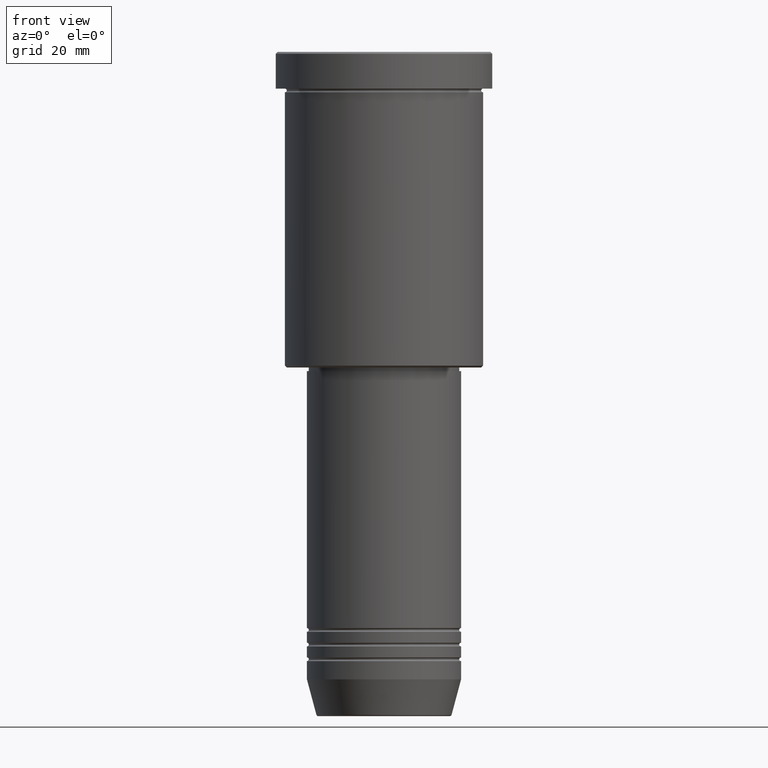
[diagram: clean part render]
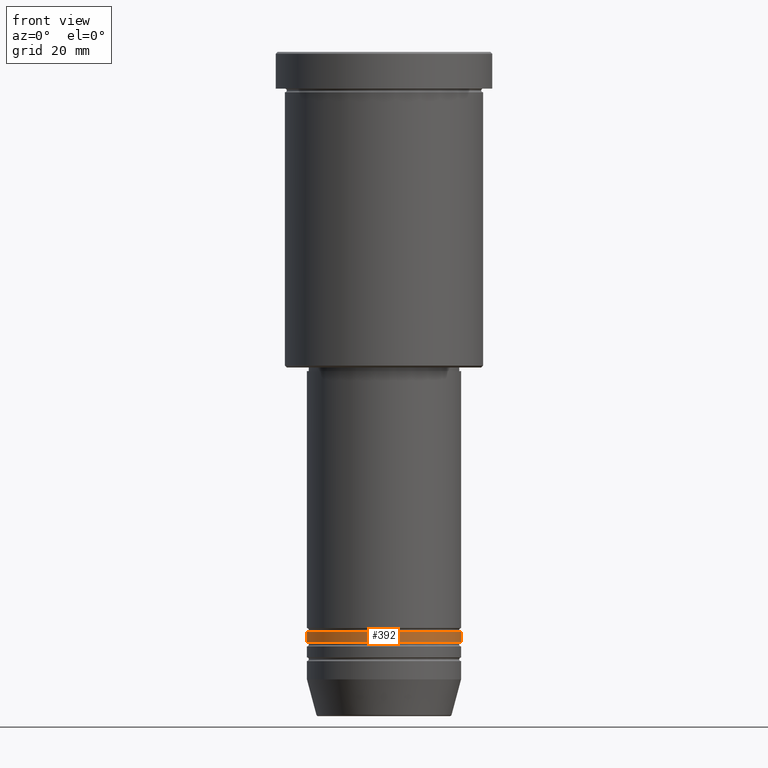
[diagram: same view with one face highlighted and labeled with its STEP entity id]
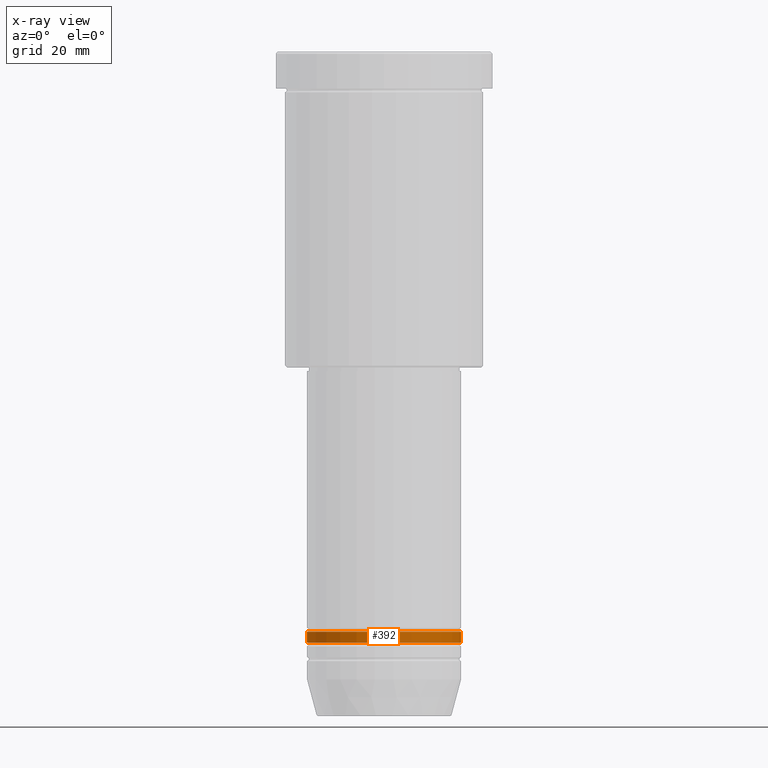
[diagram: x-ray of the same camera — body ghosted, the highlighted face saturated]
A machine part, front view. The second image highlights one B-rep face of the part: STEP entity #392.
The next image is the same camera in x-ray: the body ghosted, the highlighted face saturated — about 0% of this face is hidden behind the body in this view.
In plain terms, the highlighted cylindrical surface (partial cylindrical patch) has radius 21 mm, axis along (-0, -0, 1).
Its self-contained STEP definition (entity closure, byte-faithful):
#5 = EDGE_CURVE ( 'NONE', #121, #1114, #1091, .T. ) ;
#53 = CARTESIAN_POINT ( 'NONE',  ( 21.00000000000000355, 0.000000000000000000, 0.000000000000000000 ) ) ;
#121 = VERTEX_POINT ( 'NONE', #873 ) ;
#142 = CARTESIAN_POINT ( 'NONE',  ( 0.000000000000000000, 0.000000000000000000, -160.9999999999998863 ) ) ;
#179 = FACE_OUTER_BOUND ( 'NONE', #692, .T. ) ;
#180 = CARTESIAN_POINT ( 'NONE',  ( 21.00000000000000355, 0.000000000000000000, -160.9999999999998863 ) ) ;
#181 = EDGE_CURVE ( 'NONE', #418, #614, #568, .T. ) ;
#212 = VECTOR ( 'NONE', #1156, 1000.000000000000000 ) ;
#233 = CARTESIAN_POINT ( 'NONE',  ( 0.000000000000000000, 0.000000000000000000, -157.9999999999998579 ) ) ;
#274 = CYLINDRICAL_SURFACE ( 'NONE', #561, 21.00000000000000355 ) ;
#342 = AXIS2_PLACEMENT_3D ( 'NONE', #142, #653, #928 ) ;
#391 = AXIS2_PLACEMENT_3D ( 'NONE', #233, #1042, #1143 ) ;
#392 = ADVANCED_FACE ( 'NONE', ( #179 ), #274, .T. ) ;
#418 = VERTEX_POINT ( 'NONE', #443 ) ;
#443 = CARTESIAN_POINT ( 'NONE',  ( -21.00000000000000000, 2.571758278209441661E-15, -157.9999999999998579 ) ) ;
#479 = DIRECTION ( 'NONE',  ( -0.000000000000000000, -0.000000000000000000, 1.000000000000000000 ) ) ;
#519 = DIRECTION ( 'NONE',  ( 1.000000000000000000, 0.000000000000000000, 0.000000000000000000 ) ) ;
#529 = CARTESIAN_POINT ( 'NONE',  ( 21.00000000000000000, 0.000000000000000000, -157.9999999999998579 ) ) ;
#559 = DIRECTION ( 'NONE',  ( -0.000000000000000000, -0.000000000000000000, 1.000000000000000000 ) ) ;
#561 = AXIS2_PLACEMENT_3D ( 'NONE', #722, #559, #519 ) ;
#568 = CIRCLE ( 'NONE', #391, 21.00000000000000000 ) ;
#580 = ORIENTED_EDGE ( 'NONE', *, *, #631, .F. ) ;
#614 = VERTEX_POINT ( 'NONE', #529 ) ;
#631 = EDGE_CURVE ( 'NONE', #121, #418, #720, .T. ) ;
#653 = DIRECTION ( 'NONE',  ( -0.000000000000000000, -0.000000000000000000, 1.000000000000000000 ) ) ;
#692 = EDGE_LOOP ( 'NONE', ( #580, #697, #1045, #759 ) ) ;
#697 = ORIENTED_EDGE ( 'NONE', *, *, #5, .T. ) ;
#720 = LINE ( 'NONE', #818, #761 ) ;
#722 = CARTESIAN_POINT ( 'NONE',  ( 0.000000000000000000, 0.000000000000000000, 0.000000000000000000 ) ) ;
#759 = ORIENTED_EDGE ( 'NONE', *, *, #181, .F. ) ;
#761 = VECTOR ( 'NONE', #479, 1000.000000000000000 ) ;
#791 = LINE ( 'NONE', #53, #212 ) ;
#818 = CARTESIAN_POINT ( 'NONE',  ( -21.00000000000000355, 2.571758278209442056E-15, 0.000000000000000000 ) ) ;
#873 = CARTESIAN_POINT ( 'NONE',  ( -21.00000000000000355, 2.571758278209442056E-15, -160.9999999999998863 ) ) ;
#928 = DIRECTION ( 'NONE',  ( 1.000000000000000000, 0.000000000000000000, 0.000000000000000000 ) ) ;
#1042 = DIRECTION ( 'NONE',  ( -0.000000000000000000, -0.000000000000000000, 1.000000000000000000 ) ) ;
#1045 = ORIENTED_EDGE ( 'NONE', *, *, #1081, .T. ) ;
#1081 = EDGE_CURVE ( 'NONE', #1114, #614, #791, .T. ) ;
#1091 = CIRCLE ( 'NONE', #342, 21.00000000000000355 ) ;
#1114 = VERTEX_POINT ( 'NONE', #180 ) ;
#1143 = DIRECTION ( 'NONE',  ( 1.000000000000000000, 0.000000000000000000, 0.000000000000000000 ) ) ;
#1156 = DIRECTION ( 'NONE',  ( -0.000000000000000000, -0.000000000000000000, 1.000000000000000000 ) ) ;